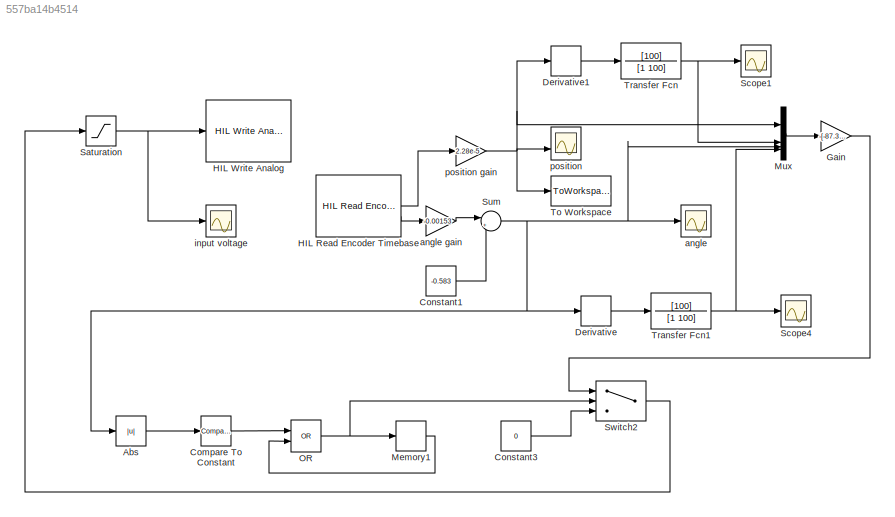
MODEL slx_557ba14b4514
KIND model
CONFIG AbsTol = auto
CONFIG EnableMultiTasking = on
CONFIG FixedStep = 0.002
CONFIG MaxStep = auto
CONFIG MinStep = auto
CONFIG RelTol = 1e-3
CONFIG SampleTimeConstraint = Unconstrained
CONFIG SolverName = ode1
CONFIG StartTime = 0.0
CONFIG StopTime = 50
BLOCK [Abs] Abs
  SaturateOnIntegerOverflow = off
BLOCK [Reference] Compare To Constant  REF=simulink/Logic and Bit
Operations/Compare
To Constant
  SourceBlock = simulink/Logic and Bit\nOperations/Compare\nTo Constant
  SourceType = Compare To Constant
BLOCK [Constant] Constant1
  Value = -0.583
BLOCK [Constant] Constant3
  Value = 0
BLOCK [Derivative] Derivative
BLOCK [Derivative] Derivative1
BLOCK [Gain] Gain
  Gain = -[-87.3632, -37.3740, -138.5758, -14.6046]
  Multiplication = Matrix(K*u)
BLOCK [Reference] HIL Read Encoder Timebase  REF=quarc_library/Data Acquisition/Generic/Timebases/HIL Read Encoder
Timebase
  AttributesFormatString = (%<object_name>)
  SourceBlock = quarc_library/Data Acquisition/Generic/Timebases/HIL Read Encoder\nTimebase
  SourceType = HIL Read Encoder Timebase
  UserDataPersistent = on
BLOCK [Reference] HIL Write Analog  REF=quarc_library/Data Acquisition/Generic/Immediate I//O/HIL Write Analog
  AttributesFormatString = (%<object_name>)
  SourceBlock = quarc_library/Data Acquisition/Generic/Immediate I//O/HIL Write Analog
  SourceType = HIL Write Analog
  UserDataPersistent = on
BLOCK [Memory] Memory1
BLOCK [Mux] Mux
  DisplayOption = bar
BLOCK [Logic] OR
  AllPortsSameDT = off
  IconShape = distinctive
  Operator = OR
  OutDataTypeStr = boolean
BLOCK [Saturate] Saturation
  LowerLimit = -5
  UpperLimit = 5
BLOCK [Scope] Scope1
  Floating = off
  NumInputPorts = 1
  ScopeSpecificationString = Simulink.scopes.TimeScopeBlockCfg('CurrentConfiguration', extmgr.ConfigurationSet(extmgr.Configuration('Core','General UI',true),extmgr.Configuration('Core','Source UI',true),extmgr.Configuration('Sources','WiredSimulink',true,'DataLoggingVariableName','ScopeData1'),extmgr.Configuration('Visuals','Time Domain',true,'SerializedDisplays',{struct('MinYLimReal','-0.72984','MaxYLimReal','0.64624','YLab...<+1414ch>
BLOCK [Scope] Scope4
  Floating = off
  NumInputPorts = 1
  ScopeSpecificationString = Simulink.scopes.TimeScopeBlockCfg('CurrentConfiguration', extmgr.ConfigurationSet(extmgr.Configuration('Core','General UI',true),extmgr.Configuration('Core','Source UI',true),extmgr.Configuration('Sources','WiredSimulink',true,'DataLoggingVariableName','ScopeData4'),extmgr.Configuration('Visuals','Time Domain',true,'SerializedDisplays',{struct('MinYLimReal','-1.51715','MaxYLimReal','1.36644','YLab...<+1388ch>
BLOCK [Sum] Sum
  Inputs = |++
BLOCK [Switch] Switch2
  Criteria = u2 > Threshold
  InputSameDT = off
  SaturateOnIntegerOverflow = off
BLOCK [ToWorkspace] To Workspace
  FixptAsFi = on
  MaxDataPoints = inf
  SampleTime = -1
  SaveFormat = Structure With Time
  VariableName = simout
BLOCK [TransferFcn] Transfer Fcn
  Denominator = [1 100]
  Numerator = [100]
BLOCK [TransferFcn] Transfer Fcn1
  Denominator = [1 100]
  Numerator = [100]
BLOCK [Scope] angle
  Floating = off
  NumInputPorts = 1
  ScopeSpecificationString = Simulink.scopes.TimeScopeBlockCfg('CurrentConfiguration', extmgr.ConfigurationSet(extmgr.Configuration('Core','General UI',true),extmgr.Configuration('Core','Source UI',true),extmgr.Configuration('Sources','WiredSimulink',true,'DataLoggingVariableName','ScopeData2'),extmgr.Configuration('Visuals','Time Domain',true,'SerializedDisplays',{struct('MinYLimReal','-0.69335','MaxYLimReal','0.15006','YLab...<+1414ch>
BLOCK [Gain] angle gain 
  Gain = -0.00153
BLOCK [Scope] input voltage
  Floating = off
  NumInputPorts = 1
  ScopeSpecificationString = Simulink.scopes.TimeScopeBlockCfg('CurrentConfiguration', extmgr.ConfigurationSet(extmgr.Configuration('Core','General UI',true),extmgr.Configuration('Core','Source UI',true),extmgr.Configuration('Sources','WiredSimulink',true),extmgr.Configuration('Visuals','Time Domain',true,'SerializedDisplays',{struct('MinYLimReal','-6.25','MaxYLimReal','6.25','YLabelReal','','MinYLimMag','0.00000','MaxYLimMag...<+1312ch>
BLOCK [Scope] position
  Floating = off
  NumInputPorts = 2
  ScopeSpecificationString = Simulink.scopes.TimeScopeBlockCfg('CurrentConfiguration', extmgr.ConfigurationSet(extmgr.Configuration('Core','General UI',true),extmgr.Configuration('Core','Source UI',true),extmgr.Configuration('Sources','WiredSimulink',true,'DataLoggingVariableName','ScopeData1'),extmgr.Configuration('Visuals','Time Domain',true,'SerializedDisplays',{struct('MinYLimReal','-0.02123','MaxYLimReal','0.17257','YLab...<+1388ch>
BLOCK [Gain] position gain
  Gain = 2.28e-5
LINE Abs:1 -> Compare To Constant:1
LINE Compare To Constant:1 -> OR:1
LINE Constant1:1 -> Sum:2
LINE Constant3:1 -> Switch2:3
LINE Derivative1:1 -> Transfer Fcn:1
LINE Derivative:1 -> Transfer Fcn1:1
LINE Gain:1 -> Switch2:1
LINE HIL Read Encoder Timebase:1 -> position gain:1
LINE HIL Read Encoder Timebase:2 -> angle gain :1
LINE Memory1:1 -> OR:2
LINE Mux:1 -> Gain:1
NET OR:1 -> Memory1:1, Switch2:2
NET Saturation:1 -> HIL Write Analog:1, input voltage:1
NET Sum:1 -> Abs:1, Derivative:1, Mux:3, angle:1
LINE Switch2:1 -> Saturation:1
NET Transfer Fcn1:1 -> Mux:4, Scope4:1
NET Transfer Fcn:1 -> Mux:2, Scope1:1
LINE angle gain :1 -> Sum:1
NET position gain:1 -> Derivative1:1, Mux:1, To Workspace:1, position:2
note: NET lines group one-source signal fan-out (src -> all destinations, sorted); 1:1 wires keep LINE
